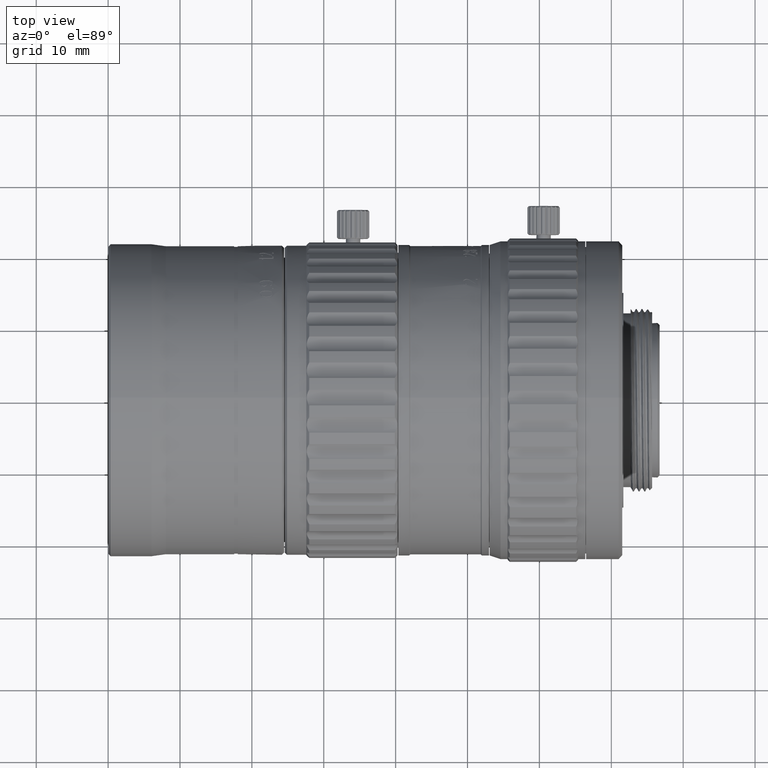
[diagram: clean part render]
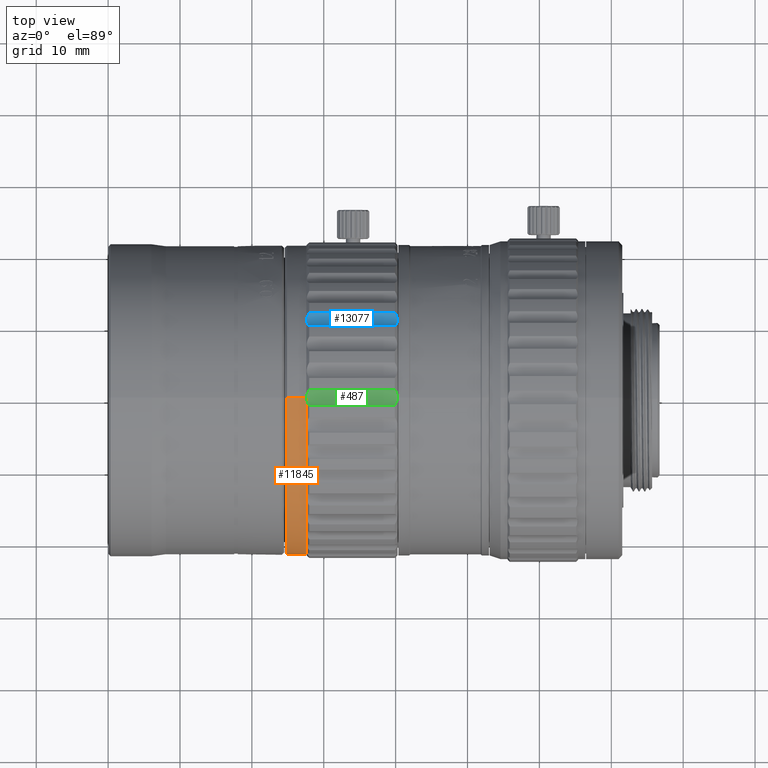
[diagram: same view with three faces highlighted in distinct colors, each labeled with its STEP entity id]
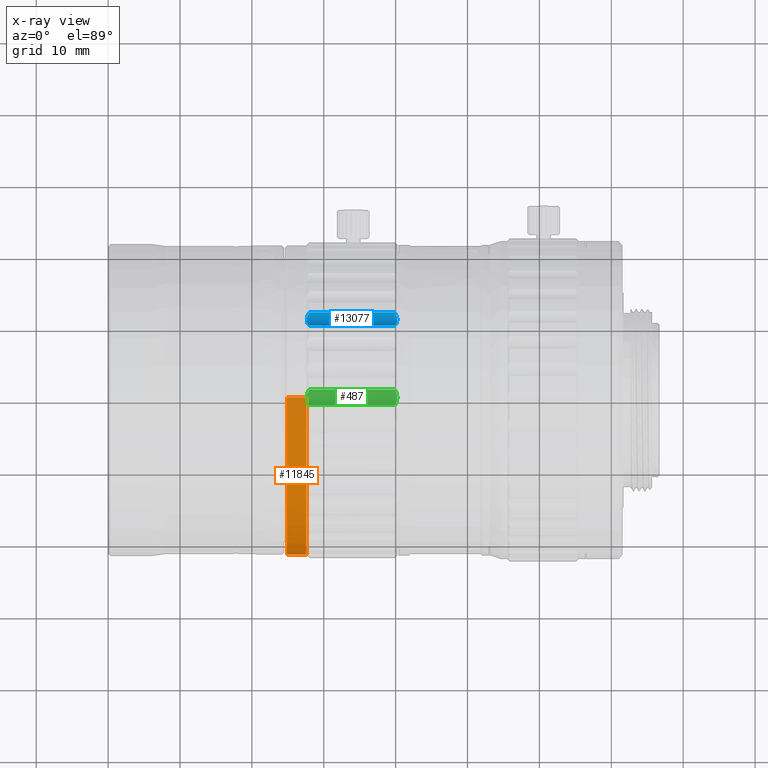
[diagram: x-ray of the same camera — body ghosted, the three highlighted faces saturated]
A machine part, top view with three faces highlighted in distinct colors.
The next image is the same camera in x-ray (body ghosted, the three faces saturated) — at least one of them is partly hidden behind the body in this view.
Their STEP definitions:

[orange] entity #11845 — the highlighted cylindrical surface (partial cylindrical patch) has radius 21.5 mm, axis along (1, 0, 0).
#42 = EDGE_LOOP ( 'NONE', ( #380, #38524, #38246, #10421, #49377 ) ) ;
#380 = ORIENTED_EDGE ( 'NONE', *, *, #37999, .F. ) ;
#1493 = CARTESIAN_POINT ( 'NONE',  ( 24.88000288753218214, 0.000000000000000000, 0.000000000000000000 ) ) ;
#3823 = CIRCLE ( 'NONE', #5641, 21.50000000000000000 ) ;
#4740 = DIRECTION ( 'NONE',  ( 1.000000000000000000, 0.000000000000000000, 0.000000000000000000 ) ) ;
#5188 = DIRECTION ( 'NONE',  ( 0.000000000000000000, -8.549310991789606394E-16, -1.000000000000000000 ) ) ;
#5641 = AXIS2_PLACEMENT_3D ( 'NONE', #34609, #11781, #51240 ) ;
#8081 = DIRECTION ( 'NONE',  ( 0.000000000000000000, -8.549310991770946875E-16, -1.000000000000000000 ) ) ;
#8564 = CIRCLE ( 'NONE', #17698, 21.49999999999600320 ) ;
#10021 = CARTESIAN_POINT ( 'NONE',  ( 27.58000000000170715, 2.632990618166809630E-15, 21.50000000000000000 ) ) ;
#10421 = ORIENTED_EDGE ( 'NONE', *, *, #56667, .T. ) ;
#11781 = DIRECTION ( 'NONE',  ( 1.000000000000000000, 0.000000000000000000, 0.000000000000000000 ) ) ;
#11845 = ADVANCED_FACE ( 'NONE', ( #48213 ), #43891, .T. ) ;
#16393 = DIRECTION ( 'NONE',  ( 1.000000000000000000, 0.000000000000000000, 0.000000000000000000 ) ) ;
#16749 = CARTESIAN_POINT ( 'NONE',  ( 24.88000180464451105, -21.49999927807277444, 2.543077737134233734E-08 ) ) ;
#17698 = AXIS2_PLACEMENT_3D ( 'NONE', #38118, #16393, #8081 ) ;
#17909 = DIRECTION ( 'NONE',  ( 0.000000000000000000, 0.000000000000000000, -1.000000000000000000 ) ) ;
#19361 = VECTOR ( 'NONE', #26504, 1000.000000000000000 ) ;
#22376 = LINE ( 'NONE', #31214, #46402 ) ;
#26504 = DIRECTION ( 'NONE',  ( 1.000000000000000000, 0.000000000000000000, 0.000000000000000000 ) ) ;
#27479 = DIRECTION ( 'NONE',  ( 1.000000000000000000, 0.000000000000000000, 0.000000000000000000 ) ) ;
#29897 = VERTEX_POINT ( 'NONE', #51100 ) ;
#31075 = CARTESIAN_POINT ( 'NONE',  ( 24.88000288753218214, 2.632990618166809630E-15, 21.50000000000000000 ) ) ;
#31214 = CARTESIAN_POINT ( 'NONE',  ( 24.88000288753218214, 0.000000000000000000, -21.50000000000000000 ) ) ;
#31404 = VERTEX_POINT ( 'NONE', #10021 ) ;
#33558 = CARTESIAN_POINT ( 'NONE',  ( 24.88000144368020017, -7.038281029700658315E-21, -21.49999855614746735 ) ) ;
#34363 = EDGE_CURVE ( 'NONE', #31404, #38879, #3823, .T. ) ;
#34609 = CARTESIAN_POINT ( 'NONE',  ( 27.58000000000170715, 0.000000000000000000, 0.000000000000000000 ) ) ;
#35087 = LINE ( 'NONE', #31075, #19361 ) ;
#36817 = AXIS2_PLACEMENT_3D ( 'NONE', #44332, #27479, #5188 ) ;
#37999 = EDGE_CURVE ( 'NONE', #29897, #31404, #35087, .T. ) ;
#38118 = CARTESIAN_POINT ( 'NONE',  ( 24.88000288753743305, -2.131628207279999844E-14, 1.447730824111000413E-13 ) ) ;
#38246 = ORIENTED_EDGE ( 'NONE', *, *, #40206, .T. ) ;
#38524 = ORIENTED_EDGE ( 'NONE', *, *, #39983, .T. ) ;
#38879 = VERTEX_POINT ( 'NONE', #53864 ) ;
#39983 = EDGE_CURVE ( 'NONE', #29897, #48526, #8564, .T. ) ;
#40206 = EDGE_CURVE ( 'NONE', #48526, #49527, #40472, .T. ) ;
#40472 = CIRCLE ( 'NONE', #36817, 21.49999855614743538 ) ;
#43891 = CYLINDRICAL_SURFACE ( 'NONE', #55282, 21.50000000000000000 ) ;
#44332 = CARTESIAN_POINT ( 'NONE',  ( 24.88000144368020017, -1.048050535246000478E-13, -3.597122599784999796E-14 ) ) ;
#46402 = VECTOR ( 'NONE', #48665, 1000.000000000000000 ) ;
#48213 = FACE_OUTER_BOUND ( 'NONE', #42, .T. ) ;
#48526 = VERTEX_POINT ( 'NONE', #16749 ) ;
#48665 = DIRECTION ( 'NONE',  ( 1.000000000000000000, 0.000000000000000000, 0.000000000000000000 ) ) ;
#49377 = ORIENTED_EDGE ( 'NONE', *, *, #34363, .F. ) ;
#49527 = VERTEX_POINT ( 'NONE', #33558 ) ;
#51100 = CARTESIAN_POINT ( 'NONE',  ( 24.88000288753743305, 2.632990618166809630E-15, 21.50000000000000000 ) ) ;
#51240 = DIRECTION ( 'NONE',  ( 0.000000000000000000, 0.000000000000000000, -1.000000000000000000 ) ) ;
#53864 = CARTESIAN_POINT ( 'NONE',  ( 27.58000000000170715, 0.000000000000000000, -21.50000000000000000 ) ) ;
#55282 = AXIS2_PLACEMENT_3D ( 'NONE', #1493, #4740, #17909 ) ;
#56667 = EDGE_CURVE ( 'NONE', #49527, #38879, #22376, .T. ) ;

[blue] entity #13077 — the highlighted cylindrical surface (edge-blend (fillet) strip) has radius 2 mm, axis along (1, 0, -0).
#91 = CARTESIAN_POINT ( 'NONE',  ( 39.87999683280216345, 10.01775744196023332, 19.53066910870926520 ) ) ;
#368 = VECTOR ( 'NONE', #10776, 1000.000000000000000 ) ;
#514 = EDGE_CURVE ( 'NONE', #11704, #44843, #27129, .T. ) ;
#615 = CARTESIAN_POINT ( 'NONE',  ( 27.98000316720015945, 11.90517688007607511, 18.44096698804161960 ) ) ;
#1193 = DIRECTION ( 'NONE',  ( -1.000000000000000000, -0.000000000000000000, -0.000000000000000000 ) ) ;
#3911 = CARTESIAN_POINT ( 'NONE',  ( 27.98000316720015945, 11.90517688007607511, 18.44096698804161960 ) ) ;
#7223 = CARTESIAN_POINT ( 'NONE',  ( 40.22108428712389383, 10.62570513674658734, 18.81619242293478322 ) ) ;
#7497 = CARTESIAN_POINT ( 'NONE',  ( 40.22989718450985208, 10.71056526671153186, 18.75788925519966455 ) ) ;
#7500 = ORIENTED_EDGE ( 'NONE', *, *, #32113, .T. ) ;
#7947 = ORIENTED_EDGE ( 'NONE', *, *, #31186, .T. ) ;
#8561 = CARTESIAN_POINT ( 'NONE',  ( 27.98000316719976510, 10.01775744195879270, 19.53066910871208606 ) ) ;
#8972 = CARTESIAN_POINT ( 'NONE',  ( 27.78939007635475988, 11.54483640505901043, 18.44509114091845703 ) ) ;
#9236 = CARTESIAN_POINT ( 'NONE',  ( 27.87653044517352896, 10.09790711010720266, 19.37326815955972492 ) ) ;
#10776 = DIRECTION ( 'NONE',  ( 1.000000000000000000, 0.000000000000000000, 0.000000000000000000 ) ) ;
#11704 = VERTEX_POINT ( 'NONE', #3911 ) ;
#12086 = CARTESIAN_POINT ( 'NONE',  ( 40.07060992364294805, 10.20149930062452626, 19.22066717977834571 ) ) ;
#12367 = CARTESIAN_POINT ( 'NONE',  ( 40.18809563209596547, 10.47069851268273410, 18.94059042316408537 ) ) ;
#13077 = ADVANCED_FACE ( 'NONE', ( #47880 ), #29599, .F. ) ;
#13124 = VERTEX_POINT ( 'NONE', #91 ) ;
#13527 = CARTESIAN_POINT ( 'NONE',  ( 27.69602122637379438, 11.26127979854599559, 18.50968250279370153 ) ) ;
#14557 = CARTESIAN_POINT ( 'NONE',  ( 40.07172439162997790, 11.54203897632772247, 18.44552109278132690 ) ) ;
#16453 = DIRECTION ( 'NONE',  ( 0.000000000000000000, 1.000000000000000000, 0.000000000000000000 ) ) ;
#16969 = AXIS2_PLACEMENT_3D ( 'NONE', #20747, #34154, #16453 ) ;
#18569 = CARTESIAN_POINT ( 'NONE',  ( 39.87999683280222030, 11.90517688007290609, 18.44096698804144907 ) ) ;
#20255 = EDGE_LOOP ( 'NONE', ( #56228, #44121, #7500, #7947 ) ) ;
#20747 = CARTESIAN_POINT ( 'NONE',  ( 27.54165751232869752, 11.80000000000000071, 20.43819952931000472 ) ) ;
#22108 = CARTESIAN_POINT ( 'NONE',  ( 27.78827560837111932, 10.20327036422670020, 19.21845951136210928 ) ) ;
#23745 = EDGE_CURVE ( 'NONE', #44843, #13124, #37059, .T. ) ;
#25836 = CARTESIAN_POINT ( 'NONE',  ( 27.63010281548960378, 10.88952598302052088, 18.65456623746402087 ) ) ;
#27129 = B_SPLINE_CURVE_WITH_KNOTS ( 'NONE', 3,
 ( #615, #39255, #8972, #13527, #31227, #48677, #25836, #43263, #44368, #52162, #43810, #22108, #9236, #39524 ),
 .UNSPECIFIED., .F., .F.,
 ( 4, 2, 2, 2, 2, 2, 4 ),
 ( 4.959995187212689575E-15, 0.0006068514394186947302, 0.0009102771591255620371, 0.001213702878832429452, 0.001517128598539296868, 0.001820554318246164066, 0.002427405757659912774 ),
 .UNSPECIFIED. ) ;
#28093 = CARTESIAN_POINT ( 'NONE',  ( 33.92999999999999972, 11.90517688007369479, 18.44096698804149526 ) ) ;
#28928 = VERTEX_POINT ( 'NONE', #43214 ) ;
#29599 = CYLINDRICAL_SURFACE ( 'NONE', #16969, 2.000000000000976552 ) ;
#31064 = VECTOR ( 'NONE', #1193, 1000.000000000000000 ) ;
#31186 = EDGE_CURVE ( 'NONE', #28928, #11704, #31523, .T. ) ;
#31227 = CARTESIAN_POINT ( 'NONE',  ( 27.67190436790274788, 11.16768321279283960, 18.53818611893336055 ) ) ;
#31523 = LINE ( 'NONE', #28093, #31064 ) ;
#32113 = EDGE_CURVE ( 'NONE', #13124, #28928, #44894, .T. ) ;
#32266 = CARTESIAN_POINT ( 'NONE',  ( 39.98346955482686838, 11.72878882545407464, 18.43167816218685928 ) ) ;
#33238 = CARTESIAN_POINT ( 'NONE',  ( 39.87999683280216345, 10.01775744196023332, 19.53066910870926520 ) ) ;
#33805 = CARTESIAN_POINT ( 'NONE',  ( 40.23009484798749469, 10.88634960001901320, 18.65619122349583137 ) ) ;
#34079 = CARTESIAN_POINT ( 'NONE',  ( 40.16397877362465607, 10.39921536412962588, 19.00739563606418514 ) ) ;
#34154 = DIRECTION ( 'NONE',  ( 1.000000000000000000, 7.511572993683345743E-16, -4.336808689937779581E-16 ) ) ;
#37059 = LINE ( 'NONE', #50236, #368 ) ;
#38370 = CARTESIAN_POINT ( 'NONE',  ( 40.22178865185359342, 10.97704140439695308, 18.61260372720696665 ) ) ;
#39255 = CARTESIAN_POINT ( 'NONE',  ( 27.87670376289146645, 11.72908427699542244, 18.43169372105189296 ) ) ;
#39524 = CARTESIAN_POINT ( 'NONE',  ( 27.98000316719976510, 10.01775744195879270, 19.53066910871208606 ) ) ;
#40846 = CARTESIAN_POINT ( 'NONE',  ( 40.16443306829664550, 11.25960172726585462, 18.51017009044917927 ) ) ;
#43214 = CARTESIAN_POINT ( 'NONE',  ( 39.87999683280222030, 11.90517688007290609, 18.44096698804144907 ) ) ;
#43263 = CARTESIAN_POINT ( 'NONE',  ( 27.62990515201242658, 10.71356073739682913, 18.75595091984398621 ) ) ;
#43810 = CARTESIAN_POINT ( 'NONE',  ( 27.69556693170405737, 10.40047666306650065, 19.00618617753338668 ) ) ;
#44121 = ORIENTED_EDGE ( 'NONE', *, *, #23745, .T. ) ;
#44368 = CARTESIAN_POINT ( 'NONE',  ( 27.63821134814655522, 10.63046695613455128, 18.81269857820602454 ) ) ;
#44843 = VERTEX_POINT ( 'NONE', #8561 ) ;
#44894 = B_SPLINE_CURVE_WITH_KNOTS ( 'NONE', 3,
 ( #33238, #46393, #12086, #34079, #12367, #7223, #7497, #33805, #38370, #55854, #40846, #14557, #32266, #18569 ),
 .UNSPECIFIED., .F., .F.,
 ( 4, 2, 2, 2, 2, 2, 4 ),
 ( 5.229234649373351502E-16, 0.0006068514394147848804, 0.0009102771591219174915, 0.001213702878829050211, 0.001517128598536182822, 0.001820554318243315433, 0.002427405757657583475 ),
 .UNSPECIFIED. ) ;
#46393 = CARTESIAN_POINT ( 'NONE',  ( 39.98329623710790059, 10.09777285870925034, 19.37353180753201087 ) ) ;
#47880 = FACE_OUTER_BOUND ( 'NONE', #20255, .T. ) ;
#48677 = CARTESIAN_POINT ( 'NONE',  ( 27.63891571287529914, 10.98244807238258680, 18.61022679301328608 ) ) ;
#50236 = CARTESIAN_POINT ( 'NONE',  ( 33.92999999999999972, 10.01775744196018181, 19.53066910870935757 ) ) ;
#52162 = CARTESIAN_POINT ( 'NONE',  ( 27.67097141213608680, 10.47370035721876391, 18.93786951884847269 ) ) ;
#55854 = CARTESIAN_POINT ( 'NONE',  ( 40.18902858786446330, 11.16382591826681825, 18.53942534040176682 ) ) ;
#56228 = ORIENTED_EDGE ( 'NONE', *, *, #514, .T. ) ;

[green] entity #487 — the highlighted cylindrical surface (edge-blend (fillet) strip) has radius 2 mm, axis along (1, 0, -0).
#487 = ADVANCED_FACE ( 'NONE', ( #40081 ), #4396, .F. ) ;
#707 = EDGE_CURVE ( 'NONE', #53739, #35891, #46284, .T. ) ;
#836 = CARTESIAN_POINT ( 'NONE',  ( 27.63010281549320624, 0.1033230177379595299, 21.60009124973719707 ) ) ;
#1710 = CARTESIAN_POINT ( 'NONE',  ( 33.92999999999999972, -1.089702120667838336, 21.92293432203388193 ) ) ;
#1760 = ORIENTED_EDGE ( 'NONE', *, *, #1809, .T. ) ;
#1809 = EDGE_CURVE ( 'NONE', #25935, #4760, #7896, .T. ) ;
#1894 = EDGE_CURVE ( 'NONE', #4760, #53739, #32028, .T. ) ;
#2264 = CARTESIAN_POINT ( 'NONE',  ( 40.22125765061932157, -0.2045034822026318977, 21.60799450284703838 ) ) ;
#2557 = CARTESIAN_POINT ( 'NONE',  ( 40.22999688330392587, -0.1016756315076283584, 21.59999999999999432 ) ) ;
#2571 = CARTESIAN_POINT ( 'NONE',  ( 27.87653044517716339, -0.9415899973730754713, 21.82669593556409282 ) ) ;
#4075 = VECTOR ( 'NONE', #26453, 1000.000000000000000 ) ;
#4396 = CYLINDRICAL_SURFACE ( 'NONE', #36790, 1.999999999999998224 ) ;
#4760 = VERTEX_POINT ( 'NONE', #23358 ) ;
#4877 = CARTESIAN_POINT ( 'NONE',  ( 27.78939007636032343, 0.7755760388607635392, 21.74633570568963137 ) ) ;
#5477 = VERTEX_POINT ( 'NONE', #24914 ) ;
#6284 = CARTESIAN_POINT ( 'NONE',  ( 40.16425587867253455, -0.4967491556920547446, 21.66024076203603954 ) ) ;
#7896 = B_SPLINE_CURVE_WITH_KNOTS ( 'NONE', 3,
 ( #48342, #44031, #4877, #40026, #13741, #9465, #836, #18318, #35741, #28593, #44879, #28307, #2571, #15165 ),
 .UNSPECIFIED., .F., .F.,
 ( 4, 2, 2, 2, 2, 2, 4 ),
 ( 3.814481494840192496E-17, 0.0006068514394144098548, 0.0009102771591215972182, 0.001213702878828784582, 0.001517128598535971836, 0.001820554318243159308, 0.002427405757657533601 ),
 .UNSPECIFIED. ) ;
#8242 = CARTESIAN_POINT ( 'NONE',  ( 39.87999683280047947, -1.089702120665204887, 21.92293432203217307 ) ) ;
#9465 = CARTESIAN_POINT ( 'NONE',  ( 27.63891571287920357, 0.2059656299236251042, 21.60815320913445348 ) ) ;
#11928 = CARTESIAN_POINT ( 'NONE',  ( 40.22161977470805994, 0.2015552210102178887, 21.60766295259404046 ) ) ;
#12204 = CARTESIAN_POINT ( 'NONE',  ( 40.22999688330391876, 0.1013787088021047139, 21.60000000000000497 ) ) ;
#12491 = CARTESIAN_POINT ( 'NONE',  ( 40.22999688330410351, 7.942067821051783997E-14, 21.59999999999983800 ) ) ;
#12769 = CARTESIAN_POINT ( 'NONE',  ( 40.16415464729890772, 0.4969848515575549519, 21.66033400074946158 ) ) ;
#13333 = LINE ( 'NONE', #30762, #4075 ) ;
#13741 = CARTESIAN_POINT ( 'NONE',  ( 27.67190436790718877, 0.4024043042324596531, 21.63838172548113192 ) ) ;
#14867 = CARTESIAN_POINT ( 'NONE',  ( 39.98344728996465847, -0.9416218675630356749, 21.82671664376587373 ) ) ;
#15165 = CARTESIAN_POINT ( 'NONE',  ( 27.98000316720154856, -1.089702120667853880, 21.92293432203388903 ) ) ;
#16634 = EDGE_CURVE ( 'NONE', #35891, #5477, #16687, .T. ) ;
#16687 = B_SPLINE_CURVE_WITH_KNOTS ( 'NONE', 3,
 ( #12491, #12204, #11928, #16781, #12769, #47642, #51106, #38489 ),
 .UNSPECIFIED., .F., .F.,
 ( 4, 2, 2, 4 ),
 ( 0.001215477654690913858, 0.001518459680430654093, 0.001821441706170394328, 0.002427405757649871328 ),
 .UNSPECIFIED. ) ;
#16781 = CARTESIAN_POINT ( 'NONE',  ( 40.18876538766683382, 0.3995940575251858418, 21.63776759613614686 ) ) ;
#16958 = ORIENTED_EDGE ( 'NONE', *, *, #27716, .T. ) ;
#17277 = DIRECTION ( 'NONE',  ( 1.000000000000000000, 8.673617379884045333E-16, -9.403954806578326338E-31 ) ) ;
#18062 = EDGE_LOOP ( 'NONE', ( #1760, #26851, #39319, #53434, #16958 ) ) ;
#18099 = DIRECTION ( 'NONE',  ( -1.734723475976808672E-15, 1.000000000000000000, 0.000000000000000000 ) ) ;
#18318 = CARTESIAN_POINT ( 'NONE',  ( 27.62990515201552810, -0.09975969634558075338, 21.59991033742052835 ) ) ;
#23358 = CARTESIAN_POINT ( 'NONE',  ( 27.98000316720154856, -1.089702120667853880, 21.92293432203388903 ) ) ;
#23449 = CARTESIAN_POINT ( 'NONE',  ( 39.87999683280047947, -1.089702120665204887, 21.92293432203217307 ) ) ;
#23462 = DIRECTION ( 'NONE',  ( 1.000000000000000000, 0.000000000000000000, 0.000000000000000000 ) ) ;
#23821 = VECTOR ( 'NONE', #23462, 1000.000000000000000 ) ;
#24855 = CARTESIAN_POINT ( 'NONE',  ( 40.22999688330410351, 7.942067821051783997E-14, 21.59999999999983800 ) ) ;
#24914 = CARTESIAN_POINT ( 'NONE',  ( 39.87999683280072105, 1.089702120664886920, 21.92293432203192793 ) ) ;
#25935 = VERTEX_POINT ( 'NONE', #41435 ) ;
#26453 = DIRECTION ( 'NONE',  ( -1.000000000000000000, -0.000000000000000000, -0.000000000000000000 ) ) ;
#26851 = ORIENTED_EDGE ( 'NONE', *, *, #1894, .T. ) ;
#27716 = EDGE_CURVE ( 'NONE', #5477, #25935, #13333, .T. ) ;
#28307 = CARTESIAN_POINT ( 'NONE',  ( 27.78827560837305555, -0.7729384185778586103, 21.74530934055761833 ) ) ;
#28593 = CARTESIAN_POINT ( 'NONE',  ( 27.67097141213855949, -0.3984441784438443879, 21.63752627548967311 ) ) ;
#30762 = CARTESIAN_POINT ( 'NONE',  ( 33.92999999999999972, 1.089702120667878082, 21.92293432203387837 ) ) ;
#32028 = LINE ( 'NONE', #1710, #23821 ) ;
#33147 = CARTESIAN_POINT ( 'NONE',  ( 40.18835553155751228, -0.4012808751614092562, 21.63814342161555615 ) ) ;
#33890 = CARTESIAN_POINT ( 'NONE',  ( 40.22999688330410351, 7.942067821051783997E-14, 21.59999999999983800 ) ) ;
#35741 = CARTESIAN_POINT ( 'NONE',  ( 27.63821134814943647, -0.2000948509963780264, 21.60750836053599144 ) ) ;
#35891 = VERTEX_POINT ( 'NONE', #33890 ) ;
#36790 = AXIS2_PLACEMENT_3D ( 'NONE', #48130, #17277, #18099 ) ;
#38489 = CARTESIAN_POINT ( 'NONE',  ( 39.87999683280072105, 1.089702120664886920, 21.92293432203192793 ) ) ;
#39319 = ORIENTED_EDGE ( 'NONE', *, *, #707, .T. ) ;
#40026 = CARTESIAN_POINT ( 'NONE',  ( 27.69602122637851593, 0.4977131332720010626, 21.66049516268130759 ) ) ;
#40081 = FACE_OUTER_BOUND ( 'NONE', #18062, .T. ) ;
#41435 = CARTESIAN_POINT ( 'NONE',  ( 27.98000316720154501, 1.089702120667894736, 21.92293432203388548 ) ) ;
#44031 = CARTESIAN_POINT ( 'NONE',  ( 27.87670376289522522, 0.9418380864799881236, 21.82685713570657526 ) ) ;
#44879 = CARTESIAN_POINT ( 'NONE',  ( 27.69556693170638084, -0.4960160870813291600, 21.66007839033619220 ) ) ;
#46284 = B_SPLINE_CURVE_WITH_KNOTS ( 'NONE', 3,
 ( #23449, #14867, #49767, #6284, #33147, #2264, #2557, #24855 ),
 .UNSPECIFIED., .F., .F.,
 ( 4, 2, 2, 4 ),
 ( 4.894695280271086036E-16, 0.0006077388273457033684, 0.0009116082410183086676, 0.001215477654690913858 ),
 .UNSPECIFIED. ) ;
#47642 = CARTESIAN_POINT ( 'NONE',  ( 40.07146733448877285, 0.7734302043402523363, 21.74554637579709393 ) ) ;
#48130 = CARTESIAN_POINT ( 'NONE',  ( 27.54165751232869752, 2.162140943807999986E-14, 23.59999999999999787 ) ) ;
#48342 = CARTESIAN_POINT ( 'NONE',  ( 27.98000316720154501, 1.089702120667894736, 21.92293432203388548 ) ) ;
#49767 = CARTESIAN_POINT ( 'NONE',  ( 40.07087436050511542, -0.7750659022890528105, 21.74609187204484684 ) ) ;
#51106 = CARTESIAN_POINT ( 'NONE',  ( 39.98331824852562733, 0.9418065790617879962, 21.82683666322256855 ) ) ;
#53434 = ORIENTED_EDGE ( 'NONE', *, *, #16634, .T. ) ;
#53739 = VERTEX_POINT ( 'NONE', #8242 ) ;